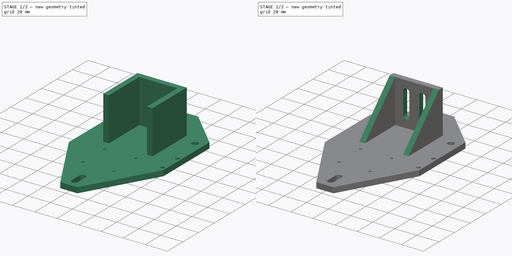
[diagram: build sequence overview — one tinted view per stage of 2, left to right]
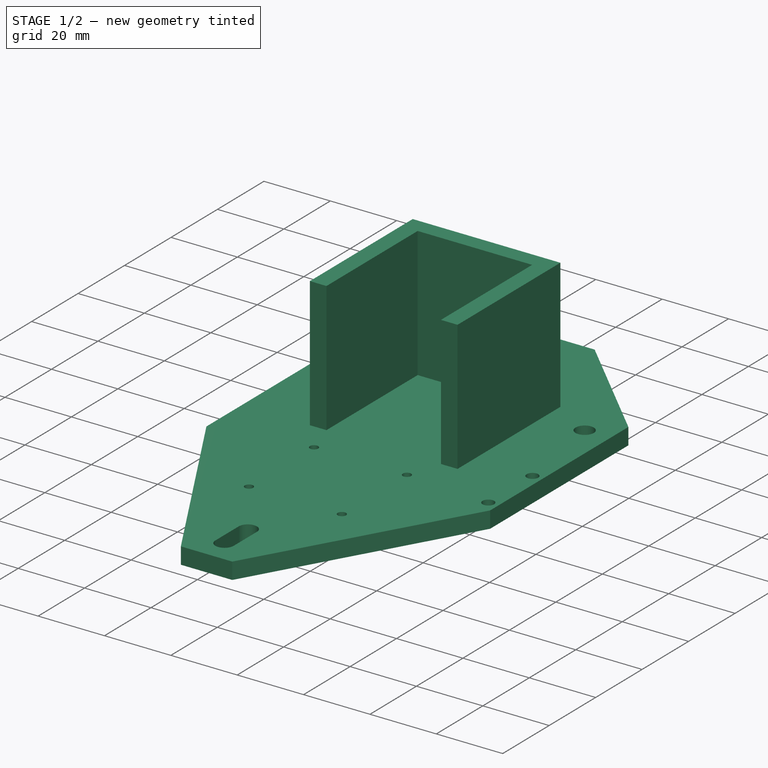
[diagram: stage 1 of 2 — iso view after this stage's code; geometry added in this stage tinted green]
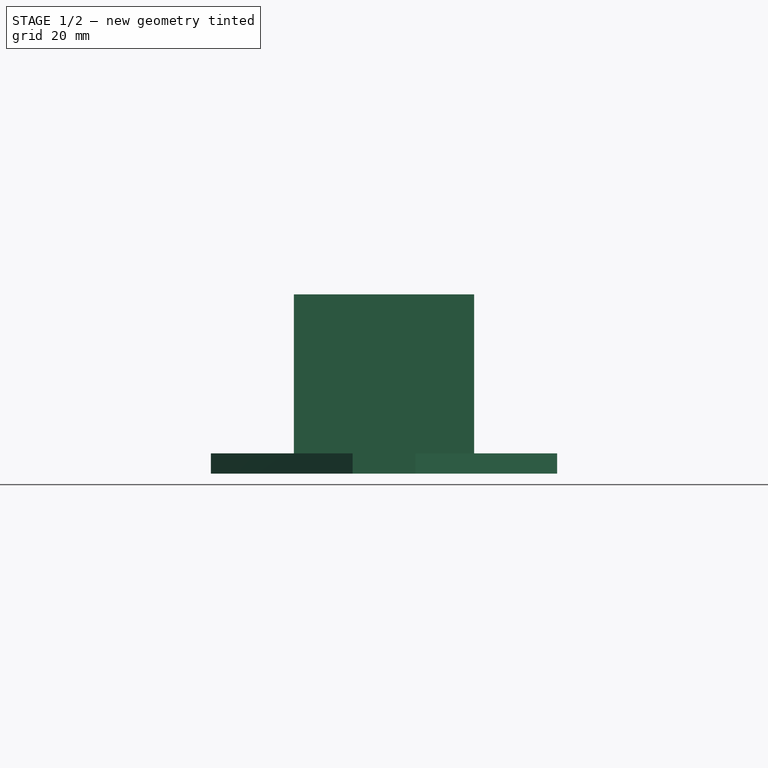
[diagram: stage 1 of 2 — front view after this stage's code; geometry added in this stage tinted green]
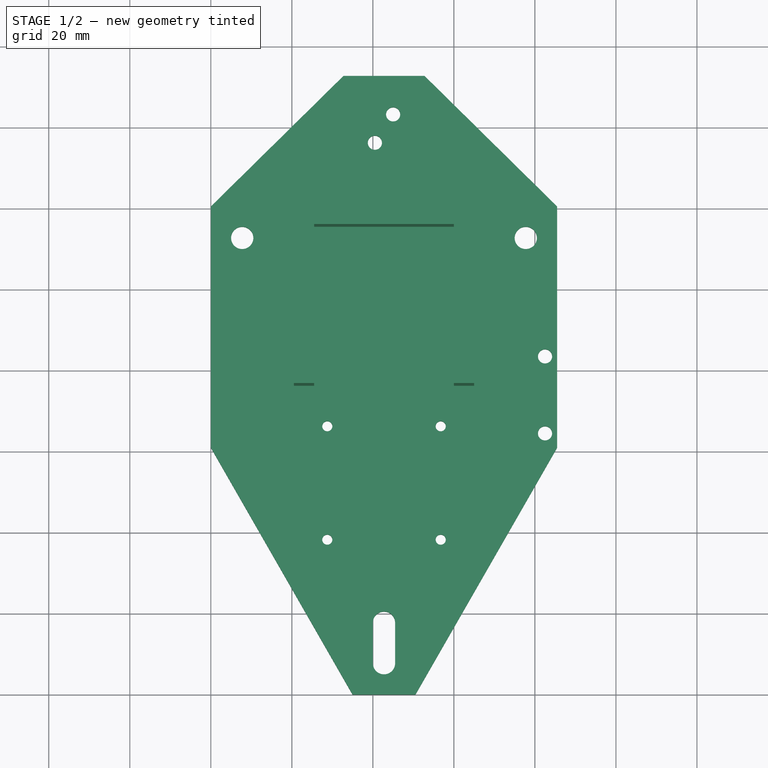
[diagram: stage 1 of 2 — top view after this stage's code; geometry added in this stage tinted green]
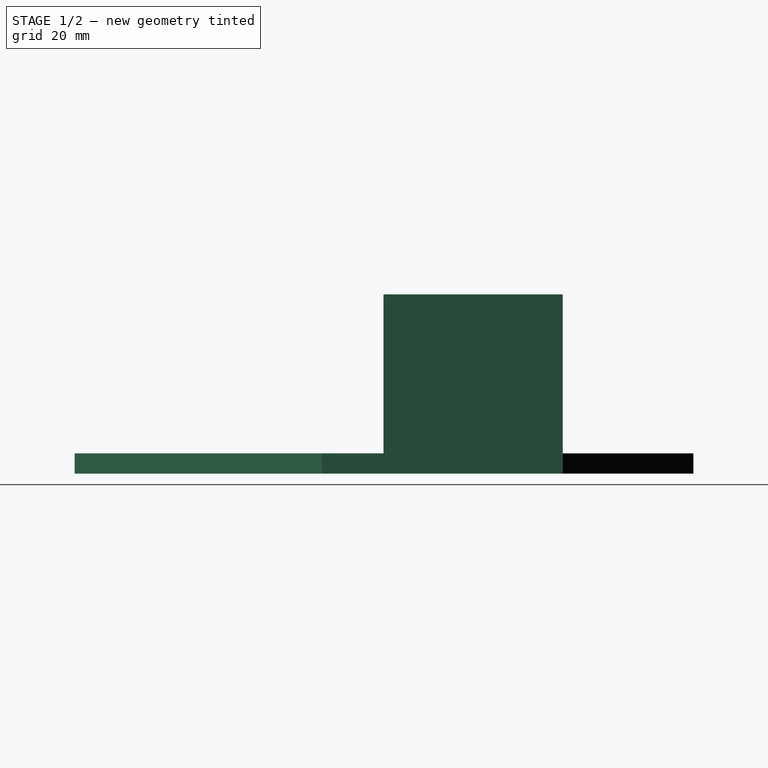
[diagram: stage 1 of 2 — right view after this stage's code; geometry added in this stage tinted green]
FCSTD DOCUMENT  (FreeCAD 0.19R)
Label: x-axis-bottom-carriage
License: All rights reserved
LicenseURL: http://en.wikipedia.org/wiki/All_rights_reserved
objects: Sketcher::SketchObject×3, PartDesign::Pad×2, PartDesign::Chamfer×1, PartDesign::Pocket×1, PartDesign::Body×1
note: 12 computed .brp shape members not serialized (recipe doc carries the construction recipe); baked Part::Feature solids carry a one-line shape summary decoded from their .brp

FEATURE [Sketcher::SketchObject] Sketch
  FullyConstrained = true
  MapMode = 5
  Support = -> [XY_Plane]
  sketch-geometry (61):
    g0: LineSegment StartX=35 StartY=0 StartZ=0 EndX=50.5 EndY=0 EndZ=0
    g1: LineSegment StartX=50.5 StartY=0 StartZ=0 EndX=85.5 EndY=61 EndZ=0
    g2: LineSegment StartX=85.5 StartY=61 StartZ=0 EndX=85.5 EndY=120.5 EndZ=0
    g3: LineSegment StartX=0 StartY=120.5 StartZ=0 EndX=0 EndY=61 EndZ=0
    g4: LineSegment StartX=0 StartY=61 StartZ=0 EndX=35 EndY=0 EndZ=0
    g5: LineSegment StartX=42.75 StartY=152.75 StartZ=0 EndX=42.75 EndY=0 EndZ=0
    g6: LineSegment StartX=0 StartY=61 StartZ=0 EndX=85.5 EndY=61 EndZ=0
    g7: GeomPoint X=42.75 Y=61 Z=0
    g8: LineSegment StartX=40 StartY=17.75 StartZ=0 EndX=45.5 EndY=17.75 EndZ=0
    g9: LineSegment StartX=45.5 StartY=17.75 StartZ=0 EndX=45.5 EndY=7.75 EndZ=0
    g10: LineSegment StartX=45.5 StartY=7.75 StartZ=0 EndX=40 EndY=7.75 EndZ=0
    g11: LineSegment StartX=40 StartY=7.75 StartZ=0 EndX=40 EndY=17.75 EndZ=0
    g12: ArcOfCircle CenterX=42.75 CenterY=17.75 CenterZ=0 NormalX=0 NormalY=0 NormalZ=1 AngleXU=0 Radius=2.75 StartAngle=3.6e-15 EndAngle=3.14159
    g13: ArcOfCircle CenterX=42.75 CenterY=7.75 CenterZ=0 NormalX=0 NormalY=0 NormalZ=1 AngleXU=0 Radius=2.75 StartAngle=3.14159 EndAngle=6.28319
    g14: GeomPoint X=42.75 Y=10.5 Z=0
    g15: GeomPoint X=42.75 Y=12.75 Z=0
    g16: LineSegment StartX=0 StartY=112.75 StartZ=0 EndX=85.5 EndY=112.75 EndZ=0
    g17: GeomPoint X=42.75 Y=112.75 Z=0
    g18: Circle CenterX=7.75 CenterY=112.75 CenterZ=0 NormalX=0 NormalY=0 NormalZ=1 AngleXU=0 Radius=2.75
    g19: Circle CenterX=77.75 CenterY=112.75 CenterZ=0 NormalX=0 NormalY=0 NormalZ=1 AngleXU=0 Radius=2.75
    g20: LineSegment StartX=7.75 StartY=120.5 StartZ=0 EndX=7.75 EndY=61 EndZ=0
    g21: GeomPoint X=7.75 Y=115.5 Z=0
    g22: GeomPoint X=5 Y=112.75 Z=0
    g23: GeomPoint X=42.75 Y=5 Z=0
    g24: LineSegment StartX=77.75 StartY=120.5 StartZ=0 EndX=77.75 EndY=61 EndZ=0
    g25: GeomPoint X=77.75 Y=115.5 Z=0
    g26: GeomPoint X=80.5 Y=112.75 Z=0
    g27: GeomPoint X=42.75 Y=62.75 Z=0
    g28: LineSegment StartX=0 StartY=68.75 StartZ=0 EndX=85.5 EndY=68.75 EndZ=0
    g29: GeomPoint X=42.75 Y=68.75 Z=0
    g30: LineSegment StartX=0 StartY=78.25 StartZ=0 EndX=85.5 EndY=78.25 EndZ=0
    g31: GeomPoint X=42.75 Y=78.25 Z=0
    g32: Circle CenterX=77.75 CenterY=68.75 CenterZ=0 NormalX=0 NormalY=0 NormalZ=1 AngleXU=0 Radius=2.75
    g33: Circle CenterX=7.75 CenterY=78.25 CenterZ=0 NormalX=0 NormalY=0 NormalZ=1 AngleXU=0 Radius=2.75
    g34: GeomPoint X=77.75 Y=66 Z=0
    g35: LineSegment StartX=0 StartY=120.5 StartZ=0 EndX=85.5 EndY=120.5 EndZ=0
    g36: LineSegment StartX=0 StartY=120.5 StartZ=0 EndX=32.75 EndY=152.75 EndZ=0
    g37: LineSegment StartX=32.75 StartY=152.75 StartZ=0 EndX=52.75 EndY=152.75 EndZ=0
    g38: LineSegment StartX=52.75 StartY=152.75 StartZ=0 EndX=85.5 EndY=120.5 EndZ=0
    g39: GeomPoint X=42.75 Y=120.5 Z=0
    g40: LineSegment StartX=32.75 StartY=152.75 StartZ=0 EndX=32.75 EndY=126.75 EndZ=0
    g41: LineSegment StartX=32.75 StartY=126.75 StartZ=0 EndX=52.75 EndY=126.75 EndZ=0
    g42: LineSegment StartX=52.75 StartY=126.75 StartZ=0 EndX=52.75 EndY=152.75 EndZ=0
    g43: GeomPoint X=42.75 Y=126.75 Z=0
    g44: Circle CenterX=82.5 CenterY=64.5 CenterZ=0 NormalX=0 NormalY=0 NormalZ=1 AngleXU=0 Radius=1.75
    g45: Circle CenterX=82.5 CenterY=83.5 CenterZ=0 NormalX=0 NormalY=0 NormalZ=1 AngleXU=0 Radius=1.75
    g46: LineSegment StartX=82.5 StartY=61 StartZ=0 EndX=82.5 EndY=120.5 EndZ=0
    g47: LineSegment StartX=32.75 StartY=139.75 StartZ=0 EndX=52.75 EndY=139.75 EndZ=0
    g48: Circle CenterX=45 CenterY=143.25 CenterZ=0 NormalX=0 NormalY=0 NormalZ=1 AngleXU=0 Radius=1.75
    g49: Circle CenterX=40.5 CenterY=136.25 CenterZ=0 NormalX=0 NormalY=0 NormalZ=1 AngleXU=0 Radius=1.75
    g50: LineSegment StartX=28.75 StartY=66.25 StartZ=0 EndX=56.75 EndY=66.25 EndZ=0
    g51: LineSegment StartX=56.75 StartY=66.25 StartZ=0 EndX=56.75 EndY=38.25 EndZ=0
    g52: LineSegment StartX=56.75 StartY=38.25 StartZ=0 EndX=28.75 EndY=38.25 EndZ=0
    g53: LineSegment StartX=28.75 StartY=38.25 StartZ=0 EndX=28.75 EndY=66.25 EndZ=0
    g54: Circle CenterX=56.75 CenterY=66.25 CenterZ=0 NormalX=0 NormalY=0 NormalZ=1 AngleXU=0 Radius=1.25
    g55: Circle CenterX=28.75 CenterY=66.25 CenterZ=0 NormalX=0 NormalY=0 NormalZ=1 AngleXU=0 Radius=1.25
    g56: Circle CenterX=28.75 CenterY=38.25 CenterZ=0 NormalX=0 NormalY=0 NormalZ=1 AngleXU=0 Radius=1.25
    g57: Circle CenterX=56.75 CenterY=38.25 CenterZ=0 NormalX=0 NormalY=0 NormalZ=1 AngleXU=0 Radius=1.25
    g58: GeomPoint X=42.75 Y=66.25 Z=0
    g59: GeomPoint X=42.75 Y=76.25 Z=0
    g60: GeomPoint X=42.75 Y=20.5 Z=0
  constraints (157):
    c: PointOnObject(g0,g-1)
    c: PointOnObject(g0,g-1)
    c: Coincident(g1,g0)
    c: Coincident(g2,g1)
    c: Vertical(g2)
    c: PointOnObject(g3,g-2)
    c: PointOnObject(g3,g-2)
    c: Coincident(g4,g3)
    c: Coincident(g4,g0)
    c: Vertical(g5)
    c: Symmetric(g0,g0,g5)
    c: Coincident(g6,g3)
    c: Coincident(g6,g1)
    c: Horizontal(g6)
    c: Symmetric(g1,g3,g7)
    c: Coincident(g8,g9)
    c: Coincident(g9,g10)
    c: Coincident(g10,g11)
    c: Coincident(g11,g8)
    c: Horizontal(g8)
    c: Horizontal(g10)
    c: Vertical(g9)
    c: Vertical(g11)
    c: PointOnObject(g12,g8)
    c: Coincident(g12,g8)
    c: Coincident(g12,g8)
    c: PointOnObject(g13,g10)
    c: Coincident(g13,g10)
    c: Coincident(g13,g9)
    c: PointOnObject(g13,g5)
    c: Diameter(g13) = 5.5
    c: PointOnObject(g14,g13)
    c: PointOnObject(g14,g5)
    c: DistanceX(g9,g0) = 5
    c: Symmetric(g12,g13,g15)
    c: PointOnObject(g16,g3)
    c: PointOnObject(g16,g2)
    c: Horizontal(g16)
    c: PointOnObject(g17,g5)
    c: PointOnObject(g17,g16)
    c: PointOnObject(g18,g16)
    c: PointOnObject(g19,g16)
    c: PointOnObject(g20,g6)
    c: Vertical(g20)
    c: PointOnObject(g18,g20)
    c: PointOnObject(g21,g18)
    c: PointOnObject(g21,g20)
    c: DistanceY(g21,g20) = 5
    c: PointOnObject(g22,g18)
    c: PointOnObject(g22,g16)
    c: DistanceX(g16,g22) = 5
    c: DistanceY(g15,g17) = 100
    c: PointOnObject(g23,g13)
    c: PointOnObject(g23,g5)
    c: DistanceY(g5,g23) = 5
    c: DistanceY(g9,g9) = 10
    c: Equal(g18,g19)
    c: Diameter(g18) = 5.5
    c: PointOnObject(g24,g6)
    c: Vertical(g24)
    c: PointOnObject(g19,g24)
    c: PointOnObject(g25,g19)
    c: PointOnObject(g26,g19)
    c: PointOnObject(g25,g24)
    c: PointOnObject(g26,g16)
    c: Symmetric(g17,g15,g27)
    c: PointOnObject(g28,g3)
    c: PointOnObject(g28,g2)
    c: Horizontal(g28)
    c: PointOnObject(g29,g28)
    c: PointOnObject(g29,g5)
    c: DistanceY(g27,g29) = 6
    c: PointOnObject(g30,g3)
    c: PointOnObject(g30,g2)
    c: Horizontal(g30)
    c: PointOnObject(g31,g30)
    c: PointOnObject(g31,g5)
    c: DistanceY(g27,g31) = 15.5
    c: DistanceX(g18,g19) = 70
    c: PointOnObject(g32,g28)
    c: PointOnObject(g33,g30)
    c: PointOnObject(g33,g20)
    c: PointOnObject(g32,g24)
    c: Equal(g33,g32)
    c: Equal(g32,g18)
    c: PointOnObject(g34,g32)
    c: PointOnObject(g34,g24)
    c: DistanceY(g24,g34) = 5
    c: Coincident(g35,g3)
    c: Coincident(g35,g2)
    c: Horizontal(g35)
    c: PointOnObject(g20,g35)
    c: Coincident(g36,g3)
    c: Coincident(g37,g36)
    c: Horizontal(g37)
    c: Coincident(g38,g37)
    c: Coincident(g38,g2)
    c: PointOnObject(g39,g5)
    c: Symmetric(g2,g3,g39)
    c: Symmetric(g24,g20,g39)
    c: Symmetric(g37,g36,g5)
    c: Coincident(g40,g36)
    c: Vertical(g40)
    c: Coincident(g41,g40)
    c: Horizontal(g41)
    c: Coincident(g42,g41)
    c: Coincident(g42,g37)
    c: Vertical(g42)
    c: DistanceY(g40,g40) = 26
    c: PointOnObject(g43,g41)
    c: PointOnObject(g43,g5)
    c: DistanceY(g17,g43) = 14
    c: DistanceX(g37,g37) = 20
    c: Diameter(g44) = 3.5
    c: Equal(g44,g45)
    c: DistanceY(g44,g45) = 19
    c: PointOnObject(g46,g6)
    c: PointOnObject(g46,g35)
    c: Vertical(g46)
    c: DistanceX(g46,g1) = 3
    c: PointOnObject(g44,g46)
    c: PointOnObject(g45,g46)
    c: DistanceY(g46,g44) = 3.5
    c: PointOnObject(g47,g42)
    c: Horizontal(g47)
    c: Symmetric(g36,g40,g47)
    c: Equal(g48,g49)
    c: Diameter(g48) = 3.5
    c: DistanceX(g5,g48) = 2.25
    c: DistanceX(g49,g43) = 2.25
    c: DistanceY(g49,g47) = 3.5
    c: DistanceY(g47,g48) = 3.5
    c: Coincident(g50,g51)
    c: Coincident(g51,g52)
    c: Coincident(g52,g53)
    c: Coincident(g53,g50)
    c: Horizontal(g50)
    c: Horizontal(g52)
    c: Vertical(g51)
    c: Vertical(g53)
    c: Equal(g51,g50)
    c: DistanceX(g52,g52) = 28
    c: Coincident(g54,g50)
    c: Coincident(g55,g50)
    c: Coincident(g56,g52)
    c: Coincident(g57,g51)
    c: Equal(g57,g56)
    c: Equal(g56,g55)
    c: Equal(g55,g54)
    c: Diameter(g54) = 2.5
    c: PointOnObject(g58,g5)
    c: Symmetric(g55,g54,g58)
    c: PointOnObject(g59,g5)
    c: DistanceY(g59,g39) = 44.25
    c: PointOnObject(g60,g5)
    c: PointOnObject(g60,g12)
    c: DistanceY(g58,g59) = 10
FEATURE [PartDesign::Pad] Pad
  Direction = (1,1,1)
  Length = 5
  Length2 = 100
  Profile = -> Sketch
  Type = 0
FEATURE [Sketcher::SketchObject] Sketch001
  FullyConstrained = true
  MapMode = 5
  Placement = pos=(0,0,5) rot=(0,0,1;0rad)
  Support = -> [Pad]
  sketch-geometry (10):
    g0: LineSegment StartX=20.5 StartY=120.5 StartZ=0 EndX=65 EndY=120.5 EndZ=0
    g1: LineSegment StartX=65 StartY=120.5 StartZ=0 EndX=65 EndY=76.25 EndZ=0
    g2: LineSegment StartX=65 StartY=76.25 StartZ=0 EndX=60 EndY=76.25 EndZ=0
    g3: LineSegment StartX=60 StartY=76.25 StartZ=0 EndX=60 EndY=115.5 EndZ=0
    g4: LineSegment StartX=60 StartY=115.5 StartZ=0 EndX=25.5 EndY=115.5 EndZ=0
    g5: LineSegment StartX=25.5 StartY=115.5 StartZ=0 EndX=25.5 EndY=76.25 EndZ=0
    g6: LineSegment StartX=25.5 StartY=76.25 StartZ=0 EndX=20.5 EndY=76.25 EndZ=0
    g7: LineSegment StartX=20.5 StartY=76.25 StartZ=0 EndX=20.5 EndY=120.5 EndZ=0
    g8: LineSegment StartX=0 StartY=120.5 StartZ=0 EndX=85.5 EndY=120.5 EndZ=0
    g9: GeomPoint X=42.75 Y=120.5 Z=0
  constraints (28):
    c: Horizontal(g0)
    c: Coincident(g1,g0)
    c: Vertical(g1)
    c: Coincident(g2,g1)
    c: Horizontal(g2)
    c: Coincident(g3,g2)
    c: Vertical(g3)
    c: Coincident(g4,g3)
    c: Horizontal(g4)
    c: Coincident(g5,g4)
    c: Vertical(g5)
    c: Coincident(g6,g5)
    c: Horizontal(g6)
    c: Coincident(g7,g6)
    c: Coincident(g7,g0)
    c: Vertical(g7)
    c: DistanceX(g6,g6) = 5
    c: DistanceY(g3,g0) = 5
    c: Equal(g3,g5)
    c: Equal(g2,g6)
    c: DistanceY(g5,g5) = 39.25
    c: DistanceX(g4,g4) = 34.5
    c: PointOnObject(g8,g-2)
    c: Horizontal(g8)
    c: DistanceY(g-1,g8) = 120.5
    c: DistanceX(g8,g8) = 85.5
    c: Symmetric(g8,g8,g9)
    c: Symmetric(g0,g0,g9)
FEATURE [PartDesign::Pad] Pad001
  BaseFeature = -> Pad
  Direction = (1,1,1)
  Length = 39.25
  Length2 = 100
  Profile = -> Sketch001
  Type = 0
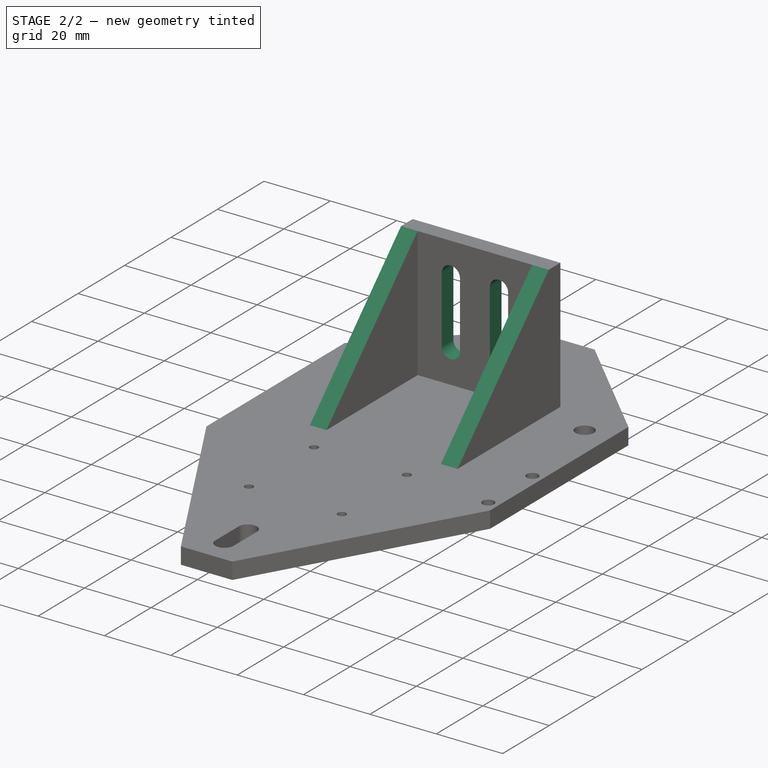
[diagram: stage 2 of 2 — iso view after this stage's code; geometry added in this stage tinted green]
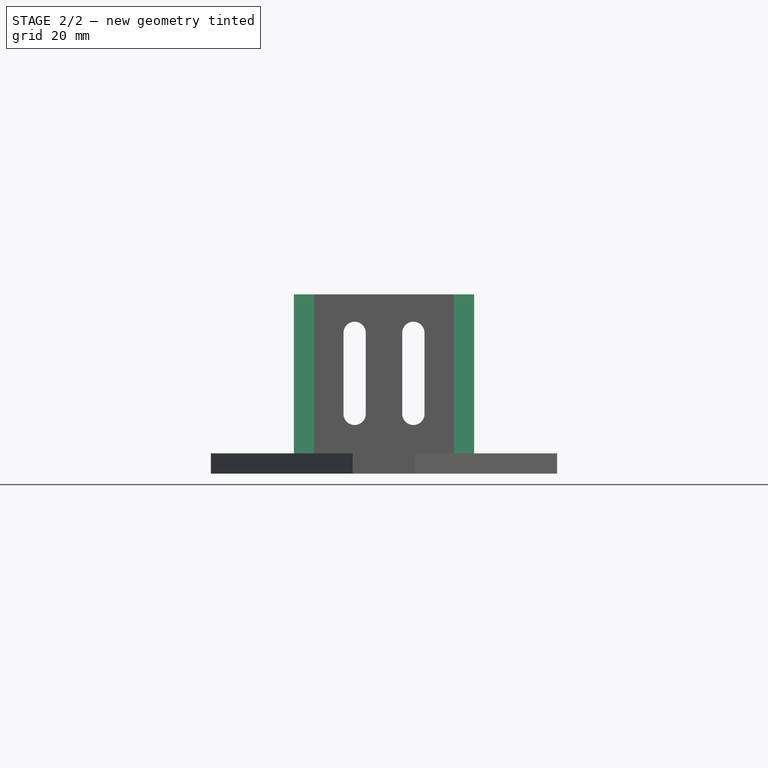
[diagram: stage 2 of 2 — front view after this stage's code; geometry added in this stage tinted green]
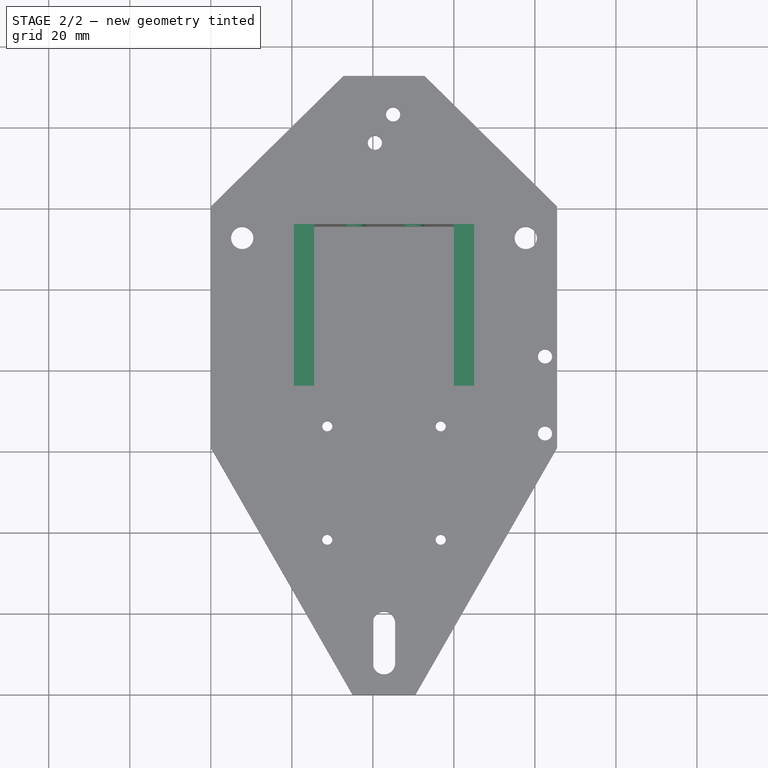
[diagram: stage 2 of 2 — top view after this stage's code; geometry added in this stage tinted green]
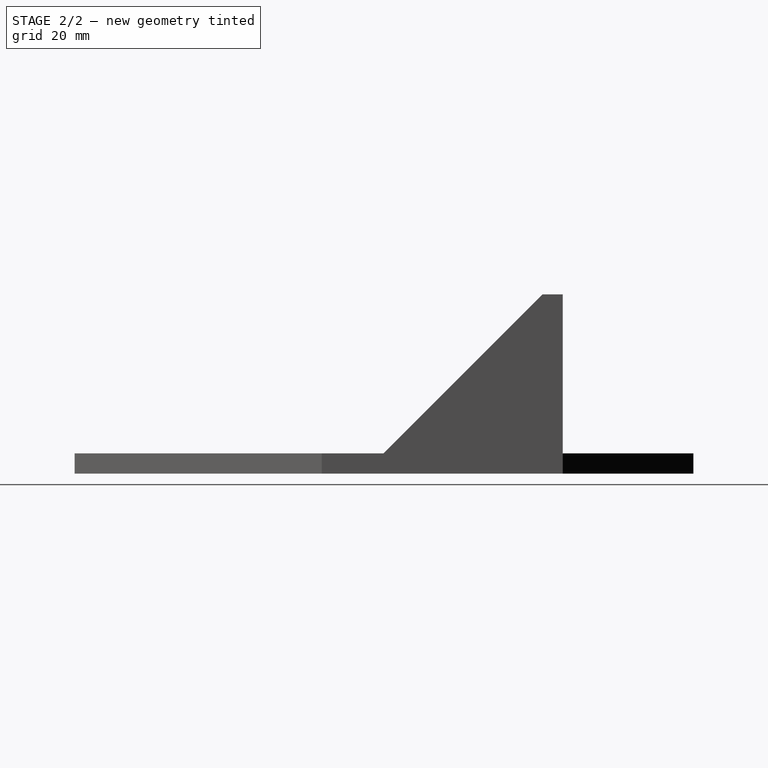
[diagram: stage 2 of 2 — right view after this stage's code; geometry added in this stage tinted green]
FEATURE [PartDesign::Chamfer] Chamfer
  Angle = 45
  Base = -> Pad001 [Edge79,Edge87]
  BaseFeature = -> Pad001
  ChamferType = 0
  FlipDirection = false
  Size = 39.24
  Size2 = 1
  SupportTransform = false
FEATURE [Sketcher::SketchObject] Sketch002
  FullyConstrained = true
  MapMode = 5
  Placement = pos=(0,115.5,0) rot=(1,0,0;1.5708rad)
  Support = -> [Chamfer]
  sketch-geometry (24):
    g0: LineSegment StartX=57.25 StartY=7.75 StartZ=0 EndX=28.25 EndY=7.75 EndZ=0
    g1: LineSegment StartX=28.25 StartY=7.75 StartZ=0 EndX=28.25 EndY=41.75 EndZ=0
    g2: LineSegment StartX=28.25 StartY=41.75 StartZ=0 EndX=57.25 EndY=41.75 EndZ=0
    g3: LineSegment StartX=57.25 StartY=41.75 StartZ=0 EndX=57.25 EndY=7.75 EndZ=0
    g4: LineSegment StartX=0 StartY=44.25 StartZ=0 EndX=85.5 EndY=44.25 EndZ=0
    g5: LineSegment StartX=42.75 StartY=44.25 StartZ=0 EndX=42.75 EndY=41.75 EndZ=0
    g6: LineSegment StartX=42.75 StartY=41.75 StartZ=0 EndX=42.75 EndY=7.75 EndZ=0
    g7: LineSegment StartX=28.25 StartY=24.75 StartZ=0 EndX=57.25 EndY=24.75 EndZ=0
    g8: LineSegment StartX=35.5 StartY=41.75 StartZ=0 EndX=35.5 EndY=7.75 EndZ=0
    g9: LineSegment StartX=50 StartY=41.75 StartZ=0 EndX=50 EndY=7.75 EndZ=0
    g10: LineSegment StartX=32.75 StartY=34.75 StartZ=0 EndX=38.25 EndY=34.75 EndZ=0
    g11: LineSegment StartX=38.25 StartY=34.75 StartZ=0 EndX=38.25 EndY=14.75 EndZ=0
    g12: LineSegment StartX=38.25 StartY=14.75 StartZ=0 EndX=32.75 EndY=14.75 EndZ=0
    g13: LineSegment StartX=32.75 StartY=14.75 StartZ=0 EndX=32.75 EndY=34.75 EndZ=0
    g14: LineSegment StartX=47.25 StartY=34.75 StartZ=0 EndX=52.75 EndY=34.75 EndZ=0
    g15: LineSegment StartX=52.75 StartY=34.75 StartZ=0 EndX=52.75 EndY=14.75 EndZ=0
    g16: LineSegment StartX=52.75 StartY=14.75 StartZ=0 EndX=47.25 EndY=14.75 EndZ=0
    g17: LineSegment StartX=47.25 StartY=14.75 StartZ=0 EndX=47.25 EndY=34.75 EndZ=0
    g18: ArcOfCircle CenterX=35.5 CenterY=34.75 CenterZ=0 NormalX=0 NormalY=0 NormalZ=1 AngleXU=0 Radius=2.75 StartAngle=-2.7e-15 EndAngle=3.14159
    g19: ArcOfCircle CenterX=35.5 CenterY=14.75 CenterZ=0 NormalX=0 NormalY=0 NormalZ=1 AngleXU=0 Radius=2.75 StartAngle=3.14159 EndAngle=6.28319
    g20: ArcOfCircle CenterX=50 CenterY=34.75 CenterZ=0 NormalX=0 NormalY=0 NormalZ=1 AngleXU=0 Radius=2.75 StartAngle=-3.6e-15 EndAngle=3.14159
    g21: ArcOfCircle CenterX=50 CenterY=14.75 CenterZ=0 NormalX=0 NormalY=0 NormalZ=1 AngleXU=0 Radius=2.75 StartAngle=3.14159 EndAngle=6.28319
    g22: GeomPoint X=35.5 Y=24.75 Z=0
    g23: GeomPoint X=50 Y=24.75 Z=0
  constraints (68):
    c: Coincident(g0,g1)
    c: Coincident(g1,g2)
    c: Coincident(g2,g3)
    c: Coincident(g3,g0)
    c: Horizontal(g0)
    c: Horizontal(g2)
    c: Vertical(g1)
    c: Vertical(g3)
    c: DistanceX(g0,g0) = 29
    c: DistanceY(g1,g1) = 34
    c: PointOnObject(g4,g-2)
    c: Horizontal(g4)
    c: DistanceY(g-1,g4) = 44.25
    c: DistanceX(g4,g4) = 85.5
    c: Vertical(g5)
    c: Symmetric(g4,g4,g5)
    c: Symmetric(g2,g1,g5)
    c: DistanceY(g5,g5) = 2.5
    c: Coincident(g6,g5)
    c: PointOnObject(g6,g0)
    c: Vertical(g6)
    c: PointOnObject(g7,g3)
    c: Horizontal(g7)
    c: Symmetric(g1,g0,g7)
    c: PointOnObject(g8,g0)
    c: Vertical(g8)
    c: PointOnObject(g9,g0)
    c: Vertical(g9)
    c: Symmetric(g5,g1,g8)
    c: Symmetric(g5,g2,g9)
    c: Coincident(g10,g11)
    c: Coincident(g11,g12)
    c: Coincident(g12,g13)
    c: Coincident(g13,g10)
    c: Horizontal(g10)
    c: Horizontal(g12)
    c: Vertical(g11)
    c: Vertical(g13)
    c: Coincident(g14,g15)
    c: Coincident(g15,g16)
    c: Coincident(g16,g17)
    c: Coincident(g17,g14)
    c: Horizontal(g14)
    c: Horizontal(g16)
    c: Vertical(g15)
    c: Vertical(g17)
    c: PointOnObject(g18,g10)
    c: Coincident(g18,g10)
    c: Coincident(g18,g10)
    c: PointOnObject(g19,g12)
    c: Coincident(g19,g12)
    c: Coincident(g19,g11)
    c: PointOnObject(g20,g14)
    c: Coincident(g20,g14)
    c: Coincident(g20,g14)
    c: PointOnObject(g21,g16)
    c: Coincident(g21,g16)
    c: Coincident(g21,g15)
    c: Equal(g11,g17)
    c: Equal(g18,g20)
    c: Diameter(g18) = 5.5
    c: PointOnObject(g18,g8)
    c: PointOnObject(g20,g9)
    c: DistanceY(g13,g13) = 20
    c: PointOnObject(g22,g7)
    c: PointOnObject(g23,g7)
    c: Symmetric(g18,g19,g22)
    c: Symmetric(g20,g21,g23)
FEATURE [PartDesign::Pocket] Pocket
  BaseFeature = -> Chamfer
  Length = 5
  Length2 = 100
  Profile = -> Sketch002
  Type = 1
FEATURE [PartDesign::Body] Body
  Group = -> [Sketch,Pad,Sketch001,Pad001,Chamfer,Sketch002,Pocket]
  Origin = -> Origin
  Tip = -> Pocket
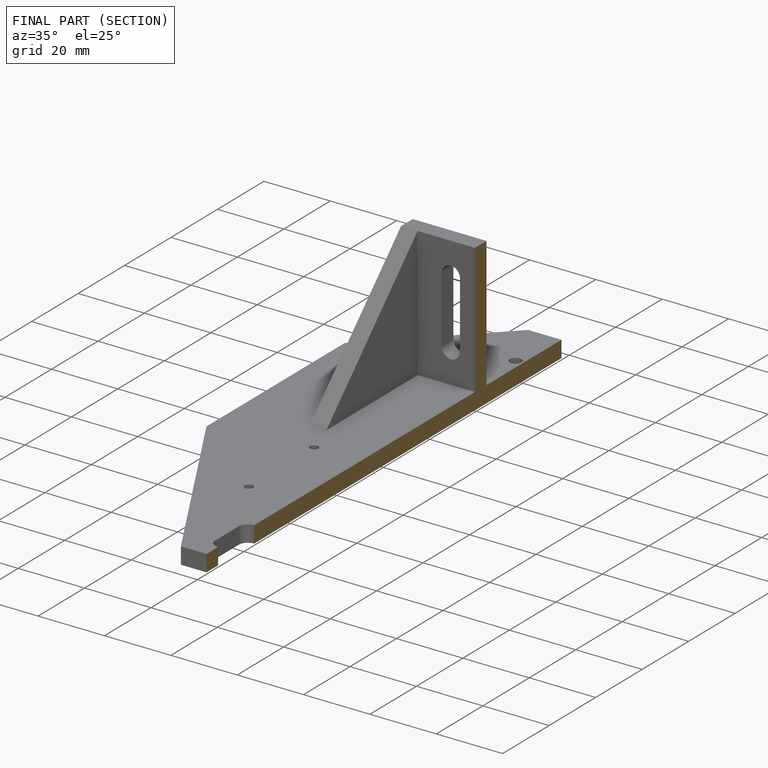
[diagram: finished part — half-section view (interior)]
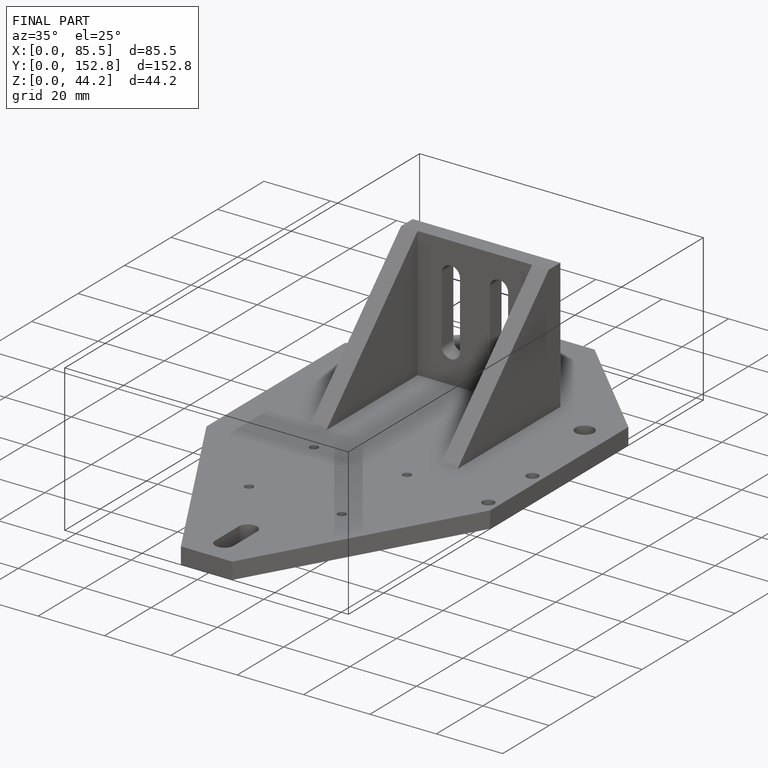
[diagram: finished part — iso view with bounding-box wireframe]
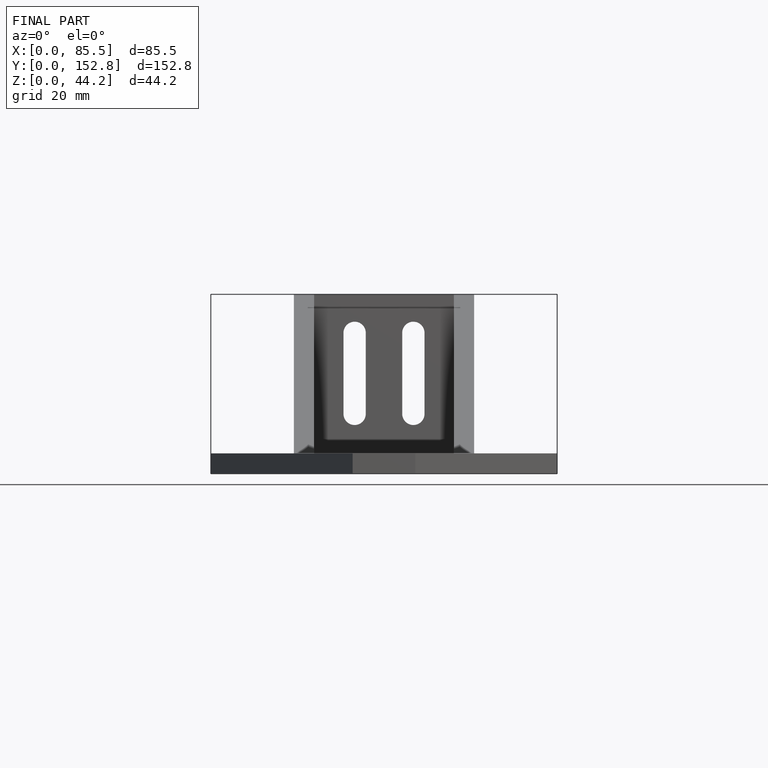
[diagram: finished part — front view with bounding-box wireframe]
